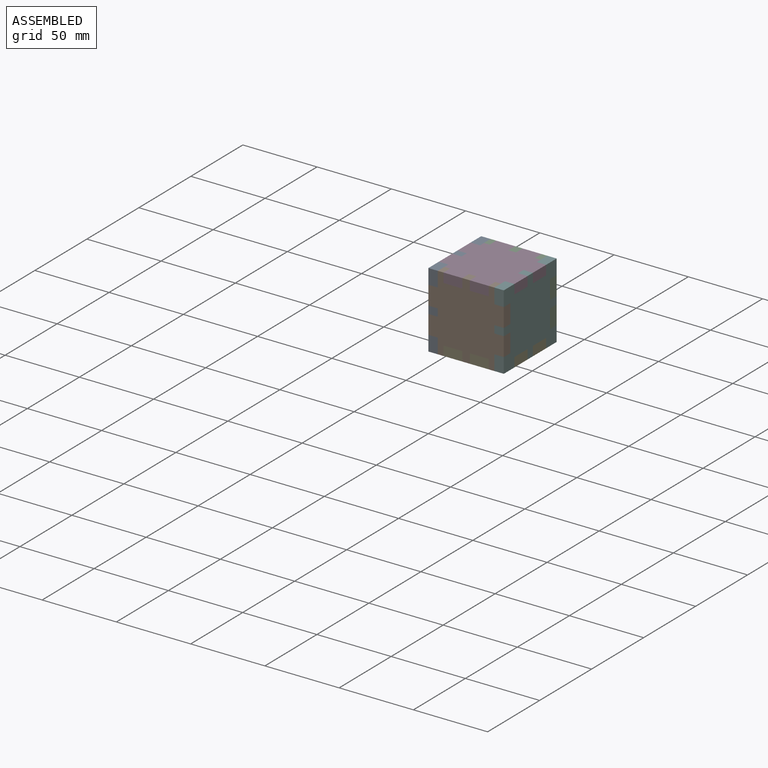
[diagram: assembled view]
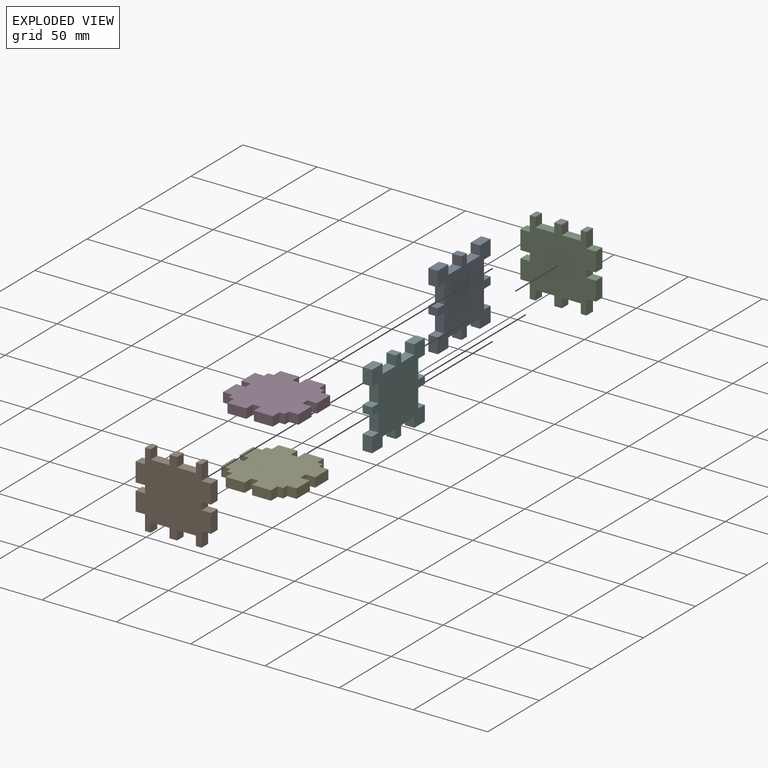
[diagram: exploded view]
GUIDED TOUR — MATED ASSEMBLY (Onshape document 6da235b9e64d2a35c3761048, AutoMate assembly 6da235b9e64d2a35c3761048_913f77d0c573499e098a4e9b_42202f5a6e1545a90d7b9f39_default)

This assembly has 6 components, labeled P0..P5 below (a component is one placed occurrence of a part; the same part can appear more than once), held together by 14 mates. A mate is a constraint between two components; its type names the relative motion it leaves free:
  PLANAR — leaves sliding in the plane through the listed point (normal = the listed direction) and rotation about that normal free.
Axis/direction vectors are unit vectors and 'through' points are millimeter coordinates, both in the assembly's world frame.

MATES
  1. PLANAR "Planar 5": P2 <-> P0, direction (0.000, 1.000, 0.000) through (15.56, 36.31, -9.84) mm
  2. PLANAR "Planar 15": P5 <-> P3, direction (0.000, 0.000, 1.000) through (37.79, 31.23, 15.56) mm
  3. PLANAR "Planar 7": P3 <-> P1, direction (0.000, -1.000, 0.000) through (6.67, -14.49, 12.38) mm
  4. PLANAR "Planar 11": P0 <-> P4, direction (-1.000, 0.000, 0.000) through (-9.84, 10.91, -9.84) mm
  5. PLANAR "Planar 14": P5 <-> P2, direction (1.000, 0.000, 0.000) through (40.96, 19.80, 9.21) mm
  6. PLANAR "Planar 1": P1 <-> P0, direction (0.000, -1.000, 0.000) through (18.10, -14.49, 9.21) mm
  7. PLANAR "Planar 12": P4 <-> P0, direction (0.000, 0.000, -1.000) through (13.02, 29.96, -35.24) mm
  8. PLANAR "Planar 8": P3 <-> P0, direction (-1.000, 0.000, 0.000) through (-9.84, 2.02, 12.38) mm
  9. PLANAR "Planar 13": P5 <-> P2, direction (0.000, 1.000, 0.000) through (37.79, 36.31, 10.48) mm
  10. PLANAR "Planar 4": P2 <-> P0, direction (-1.000, 0.000, 0.000) through (-9.84, 29.96, -18.73) mm
  11. PLANAR "Planar 3": P1 <-> P0, direction (0.000, 0.000, 1.000) through (-6.66, -11.32, 5.40) mm
  12. PLANAR "Planar 2": P1 <-> P0, direction (-1.000, 0.000, 0.000) through (-9.84, -11.32, -0.95) mm
  13. PLANAR "Planar 10": P4 <-> P1, direction (0.000, -1.000, 0.000) through (30.80, -14.49, -35.24) mm
  14. PLANAR "Planar 6": P2 <-> P0, direction (0.000, 0.000, -1.000) through (-6.66, 33.13, -25.08) mm

ASSEMBLY ORDER
  1. P0 — the base component [order heuristic]
  2. P5 — core [order heuristic]
  3. P3 — core [order heuristic]
  4. P4 [order verified]
  5. P2 — core [order heuristic]
  6. P1 — core [order heuristic]
Order-tag legend:
  [order verified] — this step's position reverses a verified removal order: the component was checked to insert without passing through the ones already placed.
  [order heuristic] — the first 5 components form the assembly's core: parts whose collision-free extraction could not be verified, listed in mate-graph order.

Of the 6 components, 6 carry the full construction recipe — the FeatureScript program that regenerates the part's solid from scratch; the rest are supplied as boundary geometry only.
Each toured component is shown spotlighted twice — in the assembled view, then in the exploded view, where a leader line traces a displaced component back to its assembled socket (saturated green if recipe-attached, orange if geometry-only; every other component desaturated gray) — followed by its recipe or geometry summary and the mates that hold it.
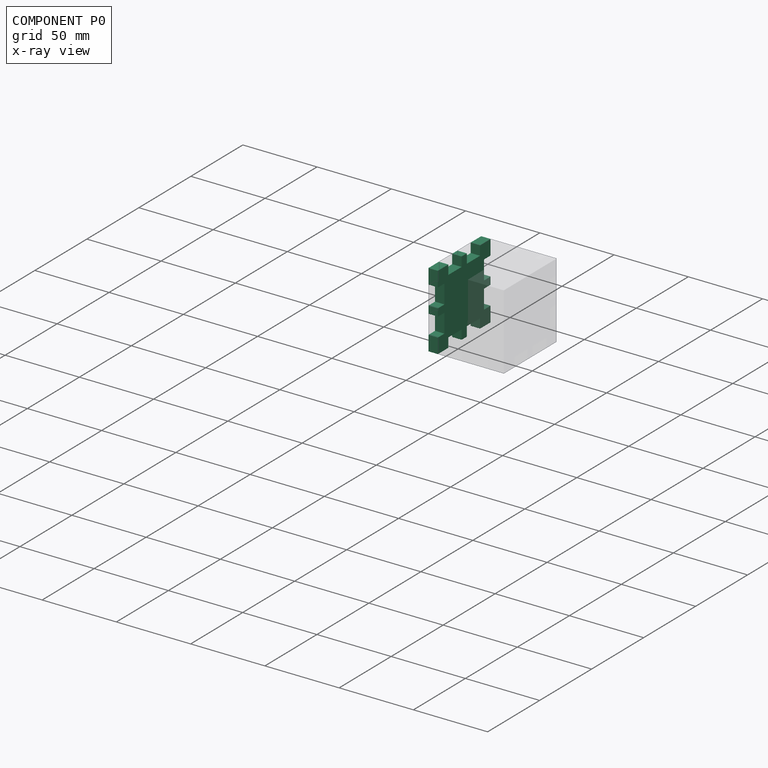
[diagram: component P0 — x-ray view]
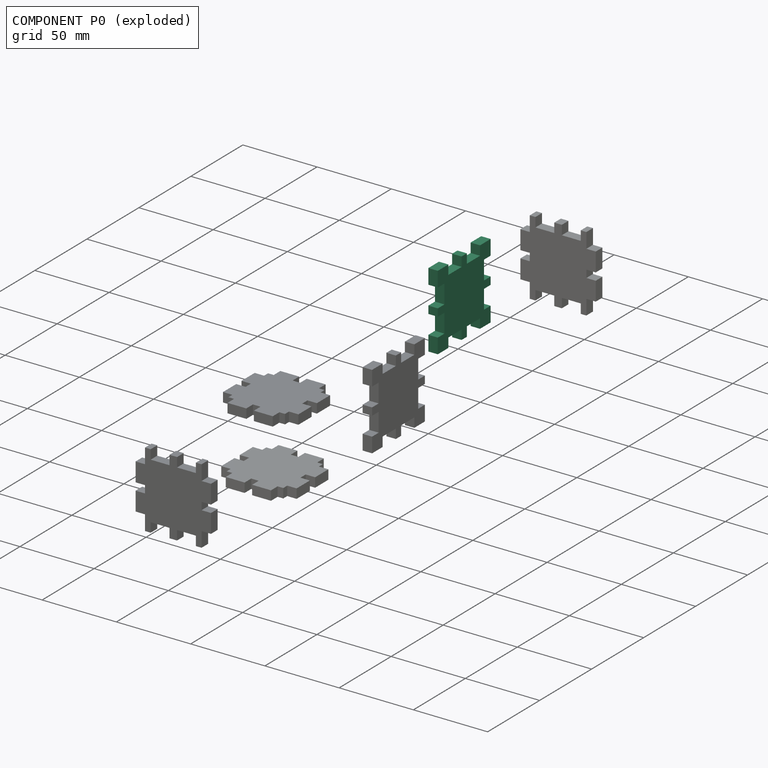
[diagram: component P0 — exploded]
COMPONENT P0 — recipe-attached (CADFS 00711558, mesh-verified: the recipe's output STEP matches this component's geometry to below the mesh-comparison resolution (tessellation chordal tolerance ~0.108 mm)).
Held by: PLANAR mate "Planar 5" to P2; PLANAR mate "Planar 11" to P4; PLANAR mate "Planar 1" to P1; PLANAR mate "Planar 12" to P4; PLANAR mate "Planar 8" to P3; PLANAR mate "Planar 4" to P2; PLANAR mate "Planar 3" to P1; PLANAR mate "Planar 2" to P1; PLANAR mate "Planar 6" to P2.
Construction recipe (FeatureScript — the CAD program that rebuilds this solid; sketch coordinates are in the units given by the * unit suffixes, e.g. mm):

FeatureScript 1511;
import(path : "onshape/std/geometry.fs", version : "1511.0");
import(path : "onshape/std/common.fs", version : "1511.0");
const mm = millimeter;
const VERTEX = EntityType.VERTEX;
const EDGE = EntityType.EDGE;
const FACE = EntityType.FACE;
const BODY = EntityType.BODY;
function v(x, y){return vector(x, y);}
function OD(order){return orderDisambiguation(order);}
function OSD(set){return originalSetDisambiguation(set);}
function TD(topology){return topologyDisambiguation(topology);}
function TDD(query){return trueDependencyDisambiguation(query);}
function sQuery(a, b, c) {return sketchEntityQuery(a, b, c);}

annotation { "Feature Type Name" : "Feature", "Feature Type Description" : "" }
export const myFeature = defineFeature(function(context is Context, id is Id, definition is map)
    precondition{}
    {
        {
            var Q0;
            Q0=qCreatedBy(makeId("Front.planeOp"),FACE);
            var sketch = newSketch(context, id + "F0", { "sketchPlane" : qUnion([Q0])});
            skLineSegment(sketch, "E0.bottom", {"start": v(25.4, 25.4) * mm, "end": v(-25.4, 25.4) * mm});
            skLineSegment(sketch, "E0.top", {"start": v(25.4, -25.4) * mm, "end": v(-25.4, -25.4) * mm});
            skLineSegment(sketch, "E0.left", {"start": v(25.4, 25.4) * mm, "end": v(25.4, -25.4) * mm});
            skLineSegment(sketch, "E0.right", {"start": v(-25.4, 25.4) * mm, "end": v(-25.4, -25.4) * mm});
            skPoint(sketch, "E0.middle", {"position": v(0, 0) * mm});
            skSolve(sketch);
        }
        {
            var Q0;
            Q0=qCreatedBy(makeId("Right.planeOp"),FACE);
            var sketch = newSketch(context, id + "F1", { "sketchPlane" : qUnion([Q0])});
            skLineSegment(sketch, "E1", {"start": v(-15.24, 19.05) * mm, "end": v(-2.54, 19.05) * mm});
            skLineSegment(sketch, "E2", {"start": v(-15.24, 25.4) * mm, "end": v(-15.24, 19.05) * mm});
            skLineSegment(sketch, "E3", {"start": v(-2.54, 25.4) * mm, "end": v(-2.54, 19.05) * mm});
            skLineSegment(sketch, "E4", {"start": v(2.54, 25.4) * mm, "end": v(2.54, 19.05) * mm});
            skLineSegment(sketch, "E5", {"start": v(15.24, 25.4) * mm, "end": v(15.24, 19.05) * mm});
            skLineSegment(sketch, "E6.trimOffspring", {"start": v(2.54, 19.05) * mm, "end": v(15.24, 19.05) * mm});
            skLineSegment(sketch, "E7", {"start": v(15.24, 25.4) * mm, "end": v(25.4, 25.4) * mm});
            skLineSegment(sketch, "E8", {"start": v(25.4, 25.4) * mm, "end": v(25.4, 15.24) * mm});
            skLineSegment(sketch, "E9", {"start": v(25.4, 15.24) * mm, "end": v(19.05, 15.24) * mm});
            skLineSegment(sketch, "E10", {"start": v(19.05, 15.24) * mm, "end": v(19.05, 2.54) * mm});
            skLineSegment(sketch, "E11", {"start": v(19.05, 2.54) * mm, "end": v(25.4, 2.54) * mm});
            skLineSegment(sketch, "E12", {"start": v(25.4, 2.54) * mm, "end": v(25.4, -2.54) * mm});
            skLineSegment(sketch, "E13", {"start": v(25.4, -2.54) * mm, "end": v(19.05, -2.54) * mm});
            skLineSegment(sketch, "E14", {"start": v(19.05, -2.54) * mm, "end": v(19.05, -15.24) * mm});
            skLineSegment(sketch, "E15", {"start": v(19.05, -15.24) * mm, "end": v(25.4, -15.24) * mm});
            skLineSegment(sketch, "E16", {"start": v(25.4, -15.24) * mm, "end": v(25.4, -25.4) * mm});
            skLineSegment(sketch, "E17", {"start": v(25.4, -25.4) * mm, "end": v(15.24, -25.4) * mm});
            skLineSegment(sketch, "E18", {"start": v(15.24, -25.4) * mm, "end": v(15.24, -19.05) * mm});
            skLineSegment(sketch, "E19", {"start": v(15.24, -19.05) * mm, "end": v(2.54, -19.05) * mm});
            skLineSegment(sketch, "E20", {"start": v(2.54, -19.05) * mm, "end": v(2.54, -25.4) * mm});
            skLineSegment(sketch, "E21", {"start": v(2.54, -25.4) * mm, "end": v(-2.54, -25.4) * mm});
            skLineSegment(sketch, "E22", {"start": v(-2.54, -25.4) * mm, "end": v(-2.54, -19.05) * mm});
            skLineSegment(sketch, "E23", {"start": v(-2.54, -19.05) * mm, "end": v(-15.24, -19.05) * mm});
            skLineSegment(sketch, "E24", {"start": v(-15.24, -19.05) * mm, "end": v(-15.24, -25.4) * mm});
            skLineSegment(sketch, "E25", {"start": v(-15.24, -25.4) * mm, "end": v(-25.4, -25.4) * mm});
            skLineSegment(sketch, "E26", {"start": v(-25.4, -25.4) * mm, "end": v(-25.4, -15.24) * mm});
            skLineSegment(sketch, "E27", {"start": v(-25.4, -15.24) * mm, "end": v(-19.05, -15.24) * mm});
            skLineSegment(sketch, "E28", {"start": v(-19.05, -15.24) * mm, "end": v(-19.05, -2.54) * mm});
            skLineSegment(sketch, "E29", {"start": v(-19.05, -2.54) * mm, "end": v(-25.4, -2.54) * mm});
            skLineSegment(sketch, "E30", {"start": v(-25.4, -2.54) * mm, "end": v(-25.4, 2.54) * mm});
            skLineSegment(sketch, "E31", {"start": v(-25.4, 2.54) * mm, "end": v(-19.05, 2.54) * mm});
            skLineSegment(sketch, "E32", {"start": v(-19.05, 2.54) * mm, "end": v(-19.05, 15.24) * mm});
            skLineSegment(sketch, "E33", {"start": v(-19.05, 15.24) * mm, "end": v(-25.4, 15.24) * mm});
            skLineSegment(sketch, "E34", {"start": v(-25.4, 15.24) * mm, "end": v(-25.4, 25.4) * mm});
            skLineSegment(sketch, "E35", {"start": v(-25.4, 25.4) * mm, "end": v(-15.24, 25.4) * mm});
            skLineSegment(sketch, "E36", {"start": v(-2.54, 25.4) * mm, "end": v(2.54, 25.4) * mm});
            skSolve(sketch);
        }
        {
            var Q0;
            Q0=makeQuery(id+"F1.imprint","IMPRINT",FACE,{"disambiguationData":[TD([[makeQuery(id+"F1.imprint","IMPRINT",EDGE,{"derivedFrom":sQuery(id+"F1.wireOp",EDGE,"E1")}),-1.0]])]});
            extrude(context, id + "F2", {"entities" : qUnion([Q0]), "depth" : 6.35 * mm, "offsetDistance" : 25.4 * mm});
        }
    });
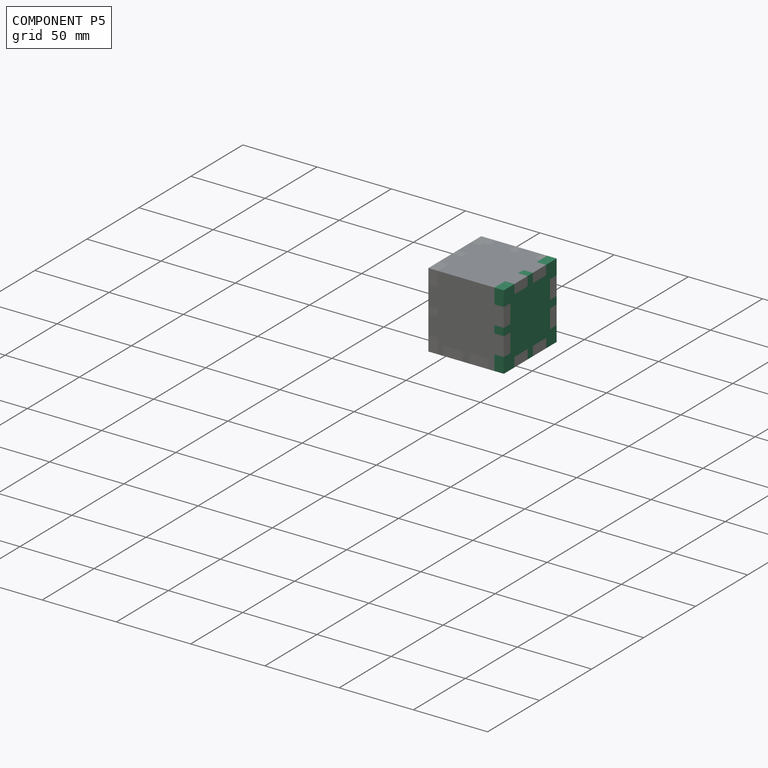
[diagram: component P5 — assembled]
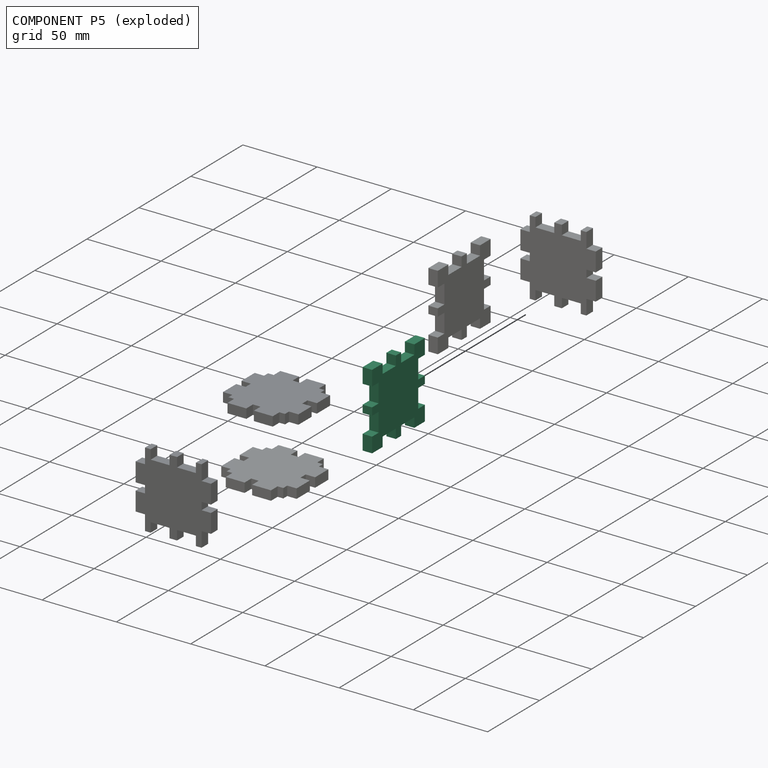
[diagram: component P5 — exploded]
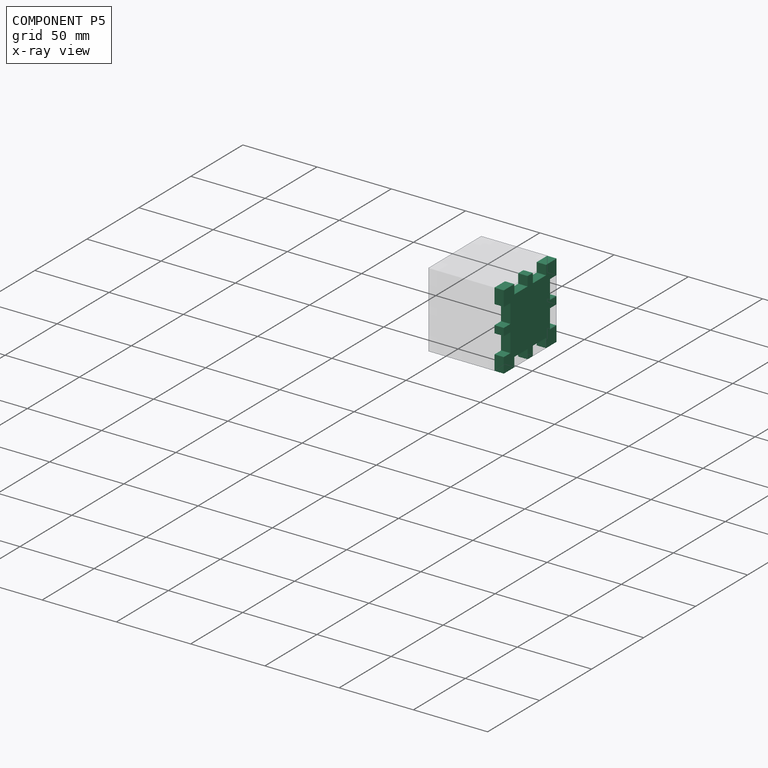
[diagram: component P5 — x-ray view]
COMPONENT P5 — same part as P0 (CADFS 00711558); its construction recipe is shown at P0.
Held by: PLANAR mate "Planar 15" to P3; PLANAR mate "Planar 14" to P2; PLANAR mate "Planar 13" to P2.
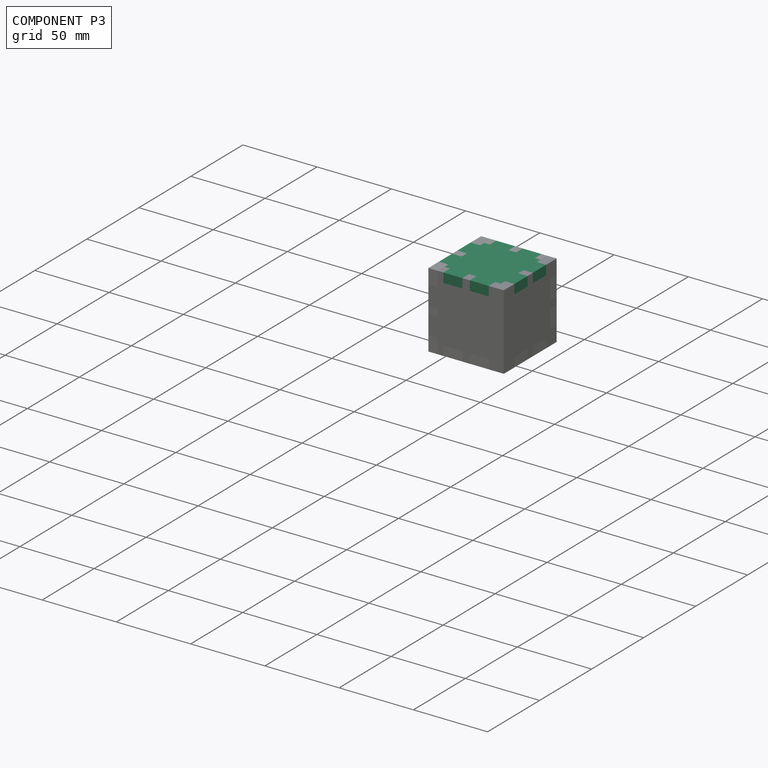
[diagram: component P3 — assembled]
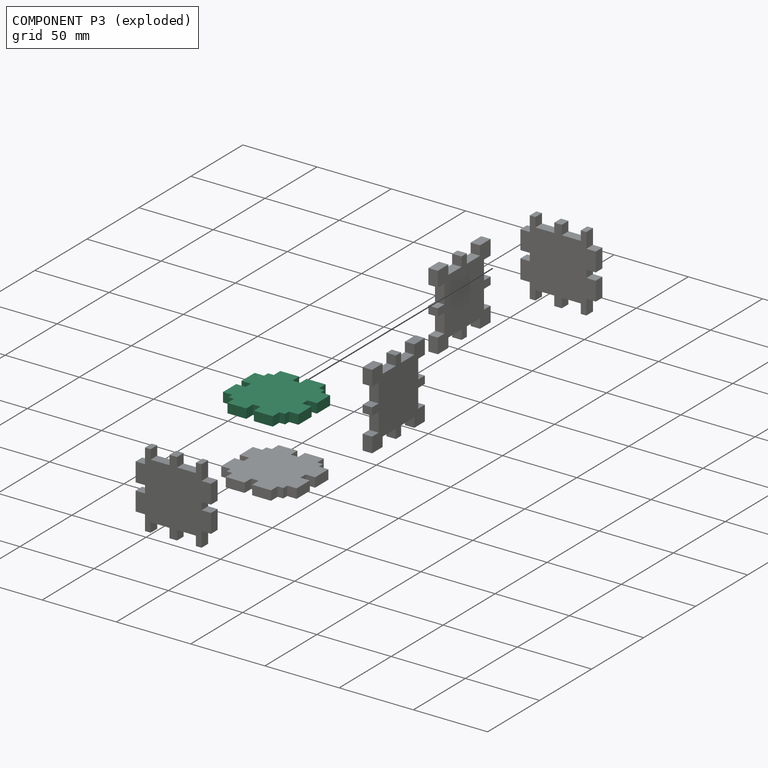
[diagram: component P3 — exploded]
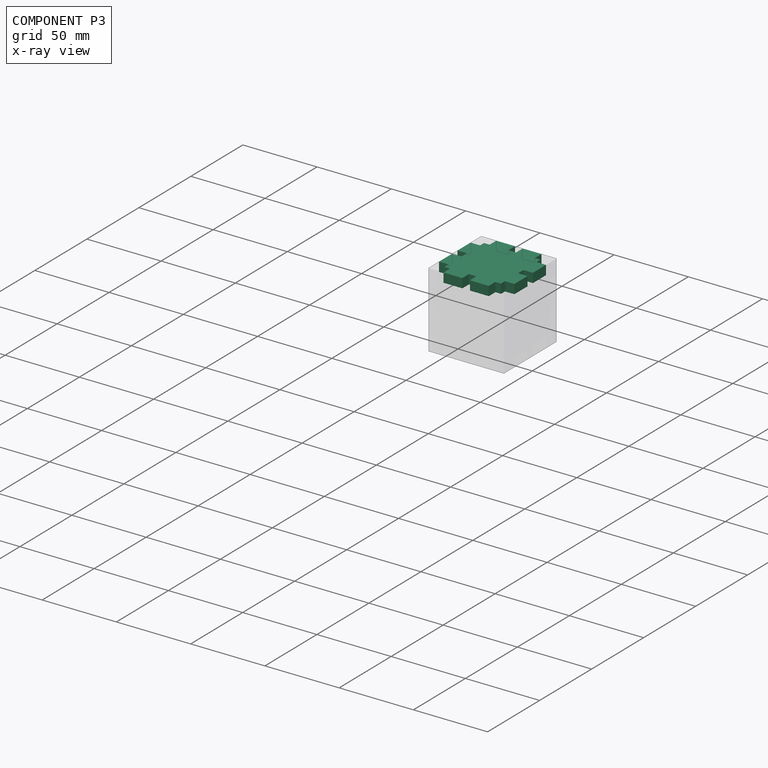
[diagram: component P3 — x-ray view]
COMPONENT P3 — recipe-attached (CADFS 00711560, mesh-verified: the recipe's output STEP matches this component's geometry to below the mesh-comparison resolution (tessellation chordal tolerance ~0.108 mm)).
Held by: PLANAR mate "Planar 15" to P5; PLANAR mate "Planar 7" to P1; PLANAR mate "Planar 8" to P0.
Construction recipe (FeatureScript — the CAD program that rebuilds this solid; sketch coordinates are in the units given by the * unit suffixes, e.g. mm):

FeatureScript 1511;
import(path : "onshape/std/geometry.fs", version : "1511.0");
import(path : "onshape/std/common.fs", version : "1511.0");
const mm = millimeter;
const VERTEX = EntityType.VERTEX;
const EDGE = EntityType.EDGE;
const FACE = EntityType.FACE;
const BODY = EntityType.BODY;
function v(x, y){return vector(x, y);}
function OD(order){return orderDisambiguation(order);}
function OSD(set){return originalSetDisambiguation(set);}
function TD(topology){return topologyDisambiguation(topology);}
function TDD(query){return trueDependencyDisambiguation(query);}
function sQuery(a, b, c) {return sketchEntityQuery(a, b, c);}

annotation { "Feature Type Name" : "Feature", "Feature Type Description" : "" }
export const myFeature = defineFeature(function(context is Context, id is Id, definition is map)
    precondition{}
    {
        {
            var Q0;
            Q0=qCreatedBy(makeId("Front.planeOp"),FACE);
            var sketch = newSketch(context, id + "F0", { "sketchPlane" : qUnion([Q0])});
            skLineSegment(sketch, "E0.bottom", {"start": v(25.4, 25.4) * mm, "end": v(-25.4, 25.4) * mm, "construction": true});
            skLineSegment(sketch, "E0.top", {"start": v(25.4, -25.4) * mm, "end": v(-25.4, -25.4) * mm, "construction": true});
            skLineSegment(sketch, "E0.left", {"start": v(25.4, 25.4) * mm, "end": v(25.4, -25.4) * mm, "construction": true});
            skLineSegment(sketch, "E0.right", {"start": v(-25.4, 25.4) * mm, "end": v(-25.4, -25.4) * mm, "construction": true});
            skPoint(sketch, "E0.middle", {"position": v(0, 0) * mm});
            skLineSegment(sketch, "E1", {"start": v(-19.05, 25.4) * mm, "end": v(-19.05, -25.4) * mm, "construction": true});
            skLineSegment(sketch, "E2", {"start": v(-2.54, -25.4) * mm, "end": v(-2.54, 25.4) * mm, "construction": true});
            skLineSegment(sketch, "E3", {"start": v(2.54, 25.4) * mm, "end": v(2.54, -25.4) * mm, "construction": true});
            skLineSegment(sketch, "E4", {"start": v(15.24, 25.4) * mm, "end": v(15.24, -25.4) * mm, "construction": true});
            skLineSegment(sketch, "E5", {"start": v(-15.24, 25.4) * mm, "end": v(-15.24, -25.4) * mm, "construction": true});
            skLineSegment(sketch, "E6", {"start": v(19.05, 25.4) * mm, "end": v(19.05, -25.4) * mm, "construction": true});
            skLineSegment(sketch, "E7", {"start": v(-25.4, 19.05) * mm, "end": v(25.4, 19.05) * mm, "construction": true});
            skLineSegment(sketch, "E8", {"start": v(-25.4, 15.24) * mm, "end": v(25.4, 15.24) * mm, "construction": true});
            skLineSegment(sketch, "E9", {"start": v(-25.4, 2.54) * mm, "end": v(25.4, 2.54) * mm, "construction": true});
            skLineSegment(sketch, "E10", {"start": v(-25.4, -19.05) * mm, "end": v(25.4, -19.05) * mm, "construction": true});
            skLineSegment(sketch, "E11", {"start": v(-25.4, -15.24) * mm, "end": v(25.4, -15.24) * mm, "construction": true});
            skLineSegment(sketch, "E12", {"start": v(-25.4, -2.54) * mm, "end": v(25.4, -2.54) * mm, "construction": true});
            skLineSegment(sketch, "E13", {"start": v(-25.4, 15.24) * mm, "end": v(-25.4, 2.54) * mm});
            skLineSegment(sketch, "E14", {"start": v(-25.4, 2.54) * mm, "end": v(-19.05, 2.54) * mm});
            skLineSegment(sketch, "E15", {"start": v(-19.05, 2.54) * mm, "end": v(-19.05, -2.54) * mm});
            skLineSegment(sketch, "E16", {"start": v(-19.05, -2.54) * mm, "end": v(-25.4, -2.54) * mm});
            skLineSegment(sketch, "E17", {"start": v(-25.4, -2.54) * mm, "end": v(-25.4, -15.24) * mm});
            skLineSegment(sketch, "E18", {"start": v(-25.4, -15.24) * mm, "end": v(-19.05, -15.24) * mm});
            skLineSegment(sketch, "E19", {"start": v(-19.05, -15.24) * mm, "end": v(-19.05, -19.05) * mm});
            skLineSegment(sketch, "E20", {"start": v(-19.05, -19.05) * mm, "end": v(-15.24, -19.05) * mm});
            skLineSegment(sketch, "E21", {"start": v(-15.24, -19.05) * mm, "end": v(-15.24, -25.4) * mm});
            skLineSegment(sketch, "E22", {"start": v(-15.24, -25.4) * mm, "end": v(-2.54, -25.4) * mm});
            skLineSegment(sketch, "E23", {"start": v(-2.54, -25.4) * mm, "end": v(-2.54, -19.05) * mm});
            skLineSegment(sketch, "E24", {"start": v(-2.54, -19.05) * mm, "end": v(2.54, -19.05) * mm});
            skLineSegment(sketch, "E25", {"start": v(2.54, -19.05) * mm, "end": v(2.54, -25.4) * mm});
            skLineSegment(sketch, "E26", {"start": v(2.54, -25.4) * mm, "end": v(15.24, -25.4) * mm});
            skLineSegment(sketch, "E27", {"start": v(15.24, -25.4) * mm, "end": v(15.24, -19.05) * mm});
            skLineSegment(sketch, "E28", {"start": v(15.24, -19.05) * mm, "end": v(19.05, -19.05) * mm});
            skLineSegment(sketch, "E29", {"start": v(19.05, -19.05) * mm, "end": v(19.05, -15.24) * mm});
            skLineSegment(sketch, "E30", {"start": v(19.05, -15.24) * mm, "end": v(25.4, -15.24) * mm});
            skLineSegment(sketch, "E31", {"start": v(25.4, -15.24) * mm, "end": v(25.4, -2.54) * mm});
            skLineSegment(sketch, "E32", {"start": v(25.4, -2.54) * mm, "end": v(19.05, -2.54) * mm});
            skLineSegment(sketch, "E33", {"start": v(19.05, -2.54) * mm, "end": v(19.05, 2.54) * mm});
            skLineSegment(sketch, "E34", {"start": v(19.05, 2.54) * mm, "end": v(25.4, 2.54) * mm});
            skLineSegment(sketch, "E35", {"start": v(25.4, 2.54) * mm, "end": v(25.4, 15.24) * mm});
            skLineSegment(sketch, "E36", {"start": v(25.4, 15.24) * mm, "end": v(19.05, 15.24) * mm});
            skLineSegment(sketch, "E37", {"start": v(19.05, 15.24) * mm, "end": v(19.05, 19.05) * mm});
            skLineSegment(sketch, "E38", {"start": v(19.05, 19.05) * mm, "end": v(15.24, 19.05) * mm});
            skLineSegment(sketch, "E39", {"start": v(15.24, 19.05) * mm, "end": v(15.24, 25.4) * mm});
            skLineSegment(sketch, "E40", {"start": v(15.24, 25.4) * mm, "end": v(2.54, 25.4) * mm});
            skLineSegment(sketch, "E41", {"start": v(2.54, 25.4) * mm, "end": v(2.54, 19.05) * mm});
            skLineSegment(sketch, "E42", {"start": v(2.54, 19.05) * mm, "end": v(-2.54, 19.05) * mm});
            skLineSegment(sketch, "E43", {"start": v(-2.54, 19.05) * mm, "end": v(-2.54, 25.4) * mm});
            skLineSegment(sketch, "E44", {"start": v(-2.54, 25.4) * mm, "end": v(-15.24, 25.4) * mm});
            skLineSegment(sketch, "E45", {"start": v(-15.24, 25.4) * mm, "end": v(-15.24, 19.05) * mm});
            skLineSegment(sketch, "E46", {"start": v(-15.24, 19.05) * mm, "end": v(-19.05, 19.05) * mm});
            skLineSegment(sketch, "E47", {"start": v(-19.05, 19.05) * mm, "end": v(-19.05, 15.24) * mm});
            skLineSegment(sketch, "E48", {"start": v(-19.05, 15.24) * mm, "end": v(-25.4, 15.24) * mm});
            skSolve(sketch);
        }
        {
            var Q0;
            Q0=makeQuery(id+"F0.imprint","IMPRINT",FACE,{"disambiguationData":[TD([[makeQuery(id+"F0.imprint","IMPRINT",EDGE,{"derivedFrom":sQuery(id+"F0.wireOp",EDGE,"E13")}),1.0]])]});
            extrude(context, id + "F1", {"entities" : qUnion([Q0]), "depth" : 6.35 * mm, "offsetDistance" : 25.4 * mm});
        }
    });
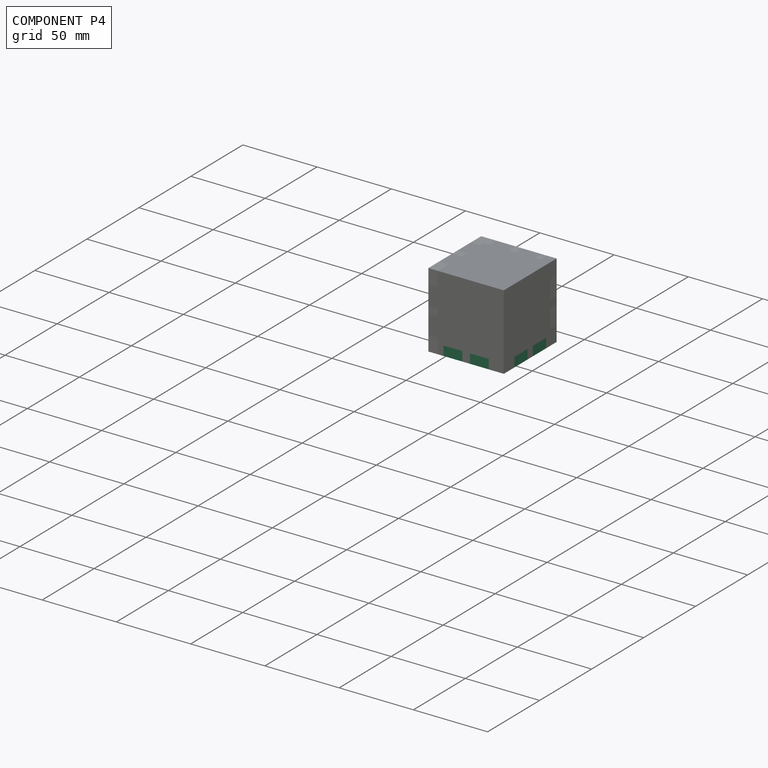
[diagram: component P4 — assembled]
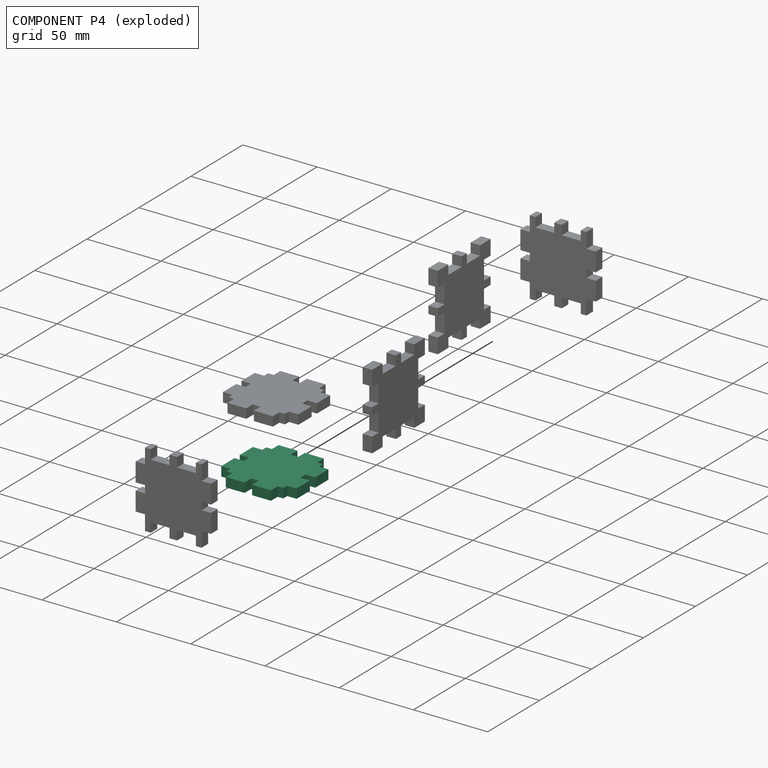
[diagram: component P4 — exploded]
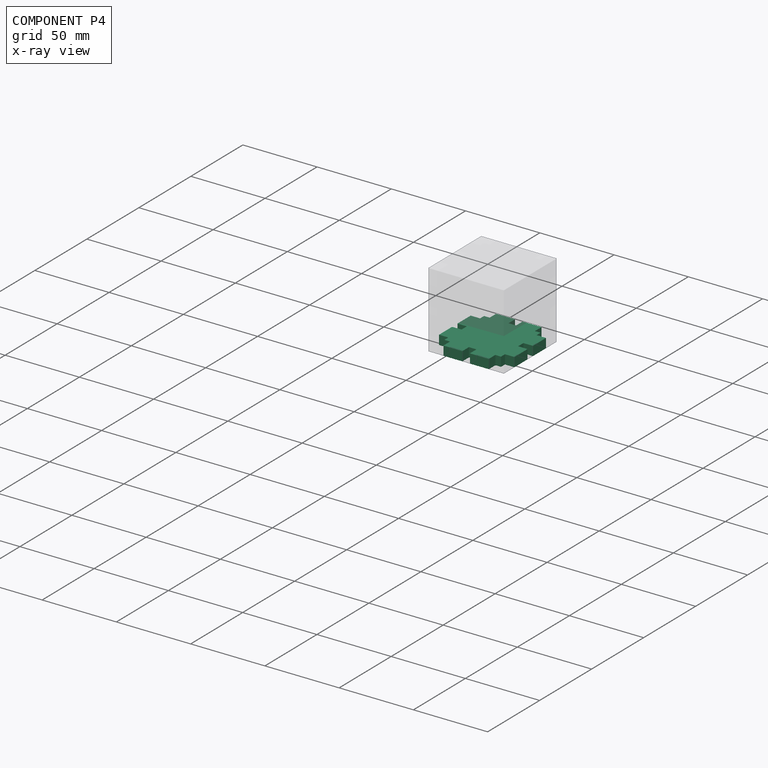
[diagram: component P4 — x-ray view]
COMPONENT P4 — same part as P3 (CADFS 00711560); its construction recipe is shown at P3.
Held by: PLANAR mate "Planar 11" to P0; PLANAR mate "Planar 12" to P0; PLANAR mate "Planar 10" to P1.
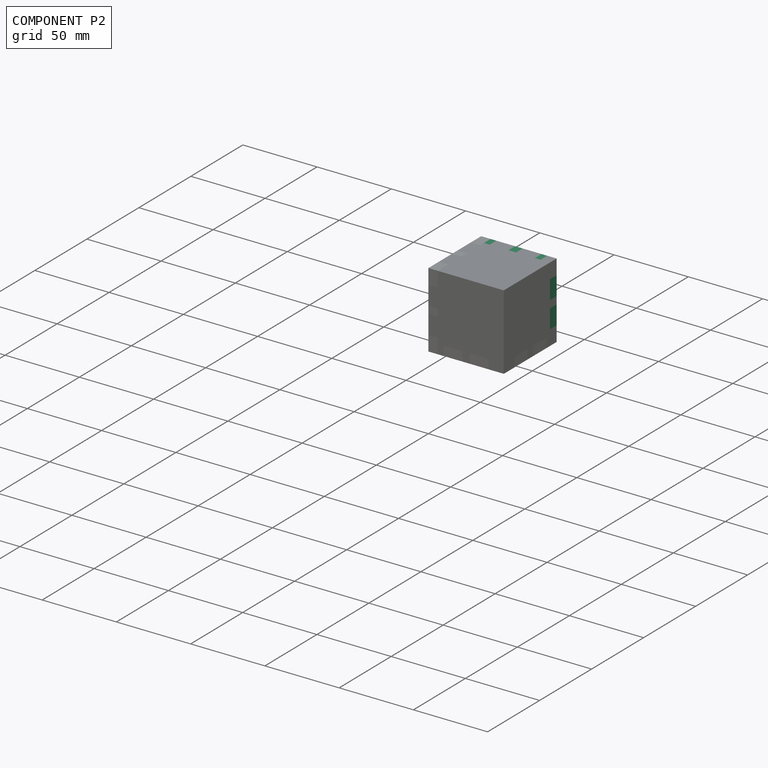
[diagram: component P2 — assembled]
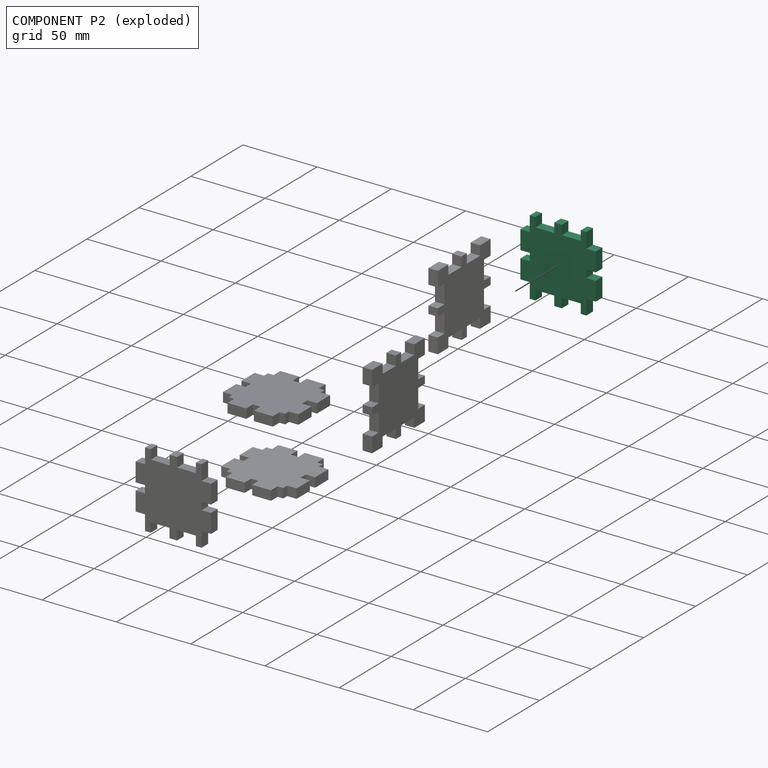
[diagram: component P2 — exploded]
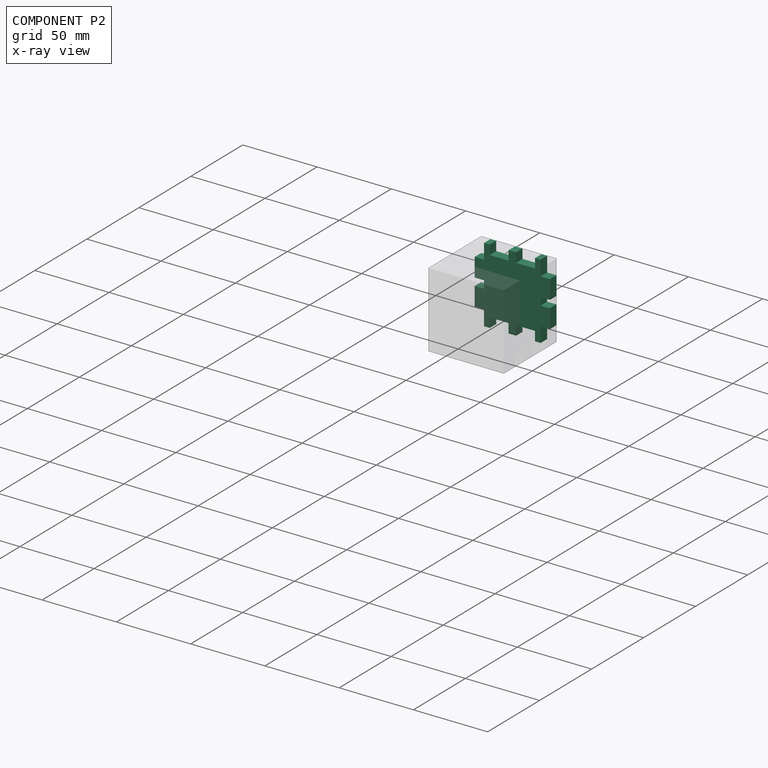
[diagram: component P2 — x-ray view]
COMPONENT P2 — same part as P1 (CADFS 00711558); its construction recipe is shown at P1.
Held by: PLANAR mate "Planar 5" to P0; PLANAR mate "Planar 14" to P5; PLANAR mate "Planar 13" to P5; PLANAR mate "Planar 4" to P0; PLANAR mate "Planar 6" to P0.
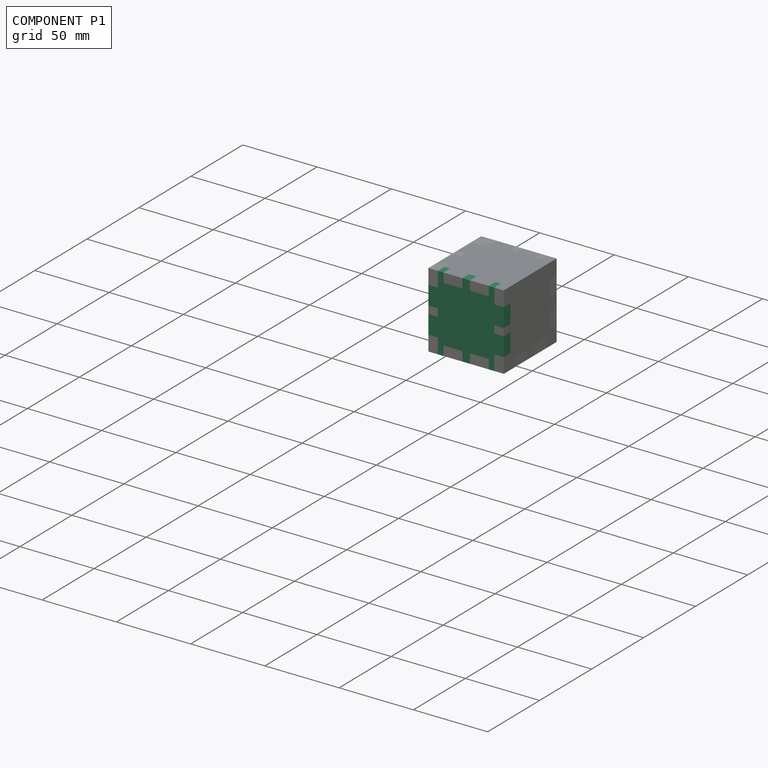
[diagram: component P1 — assembled]
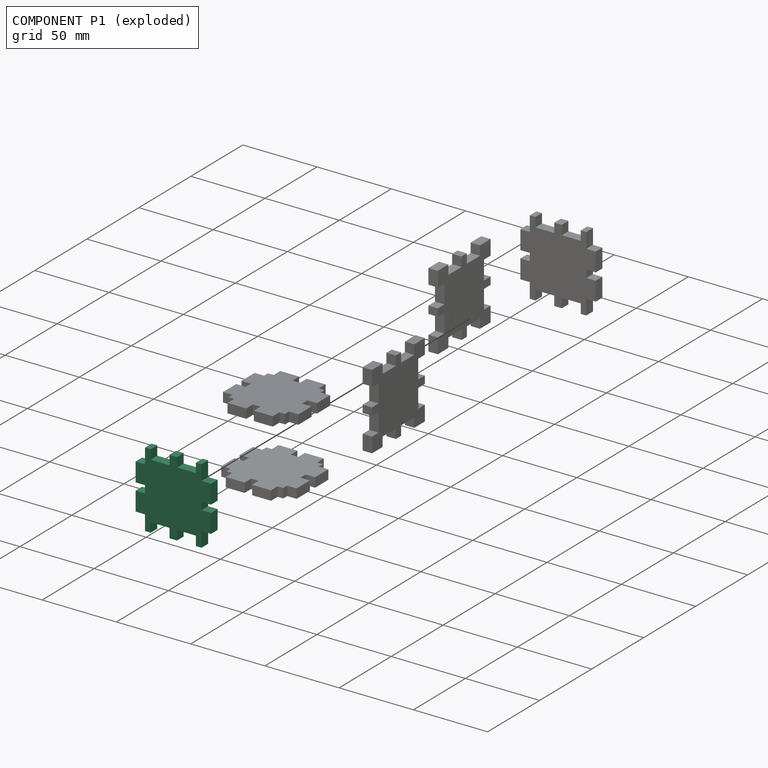
[diagram: component P1 — exploded]
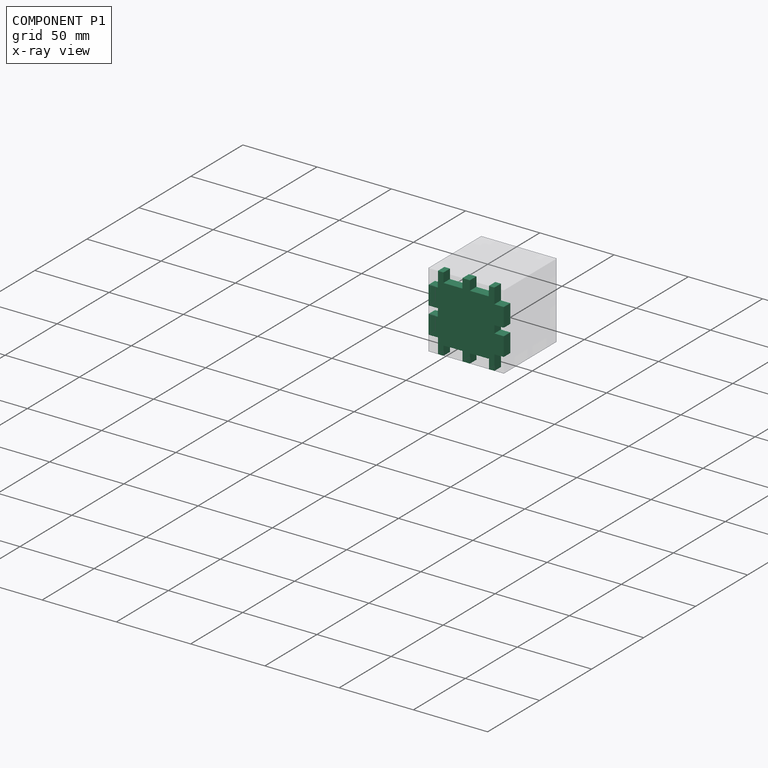
[diagram: component P1 — x-ray view]
COMPONENT P1 — recipe-attached (CADFS 00711558, mesh-verified: the recipe's output STEP matches this component's geometry to below the mesh-comparison resolution (tessellation chordal tolerance ~0.108 mm)).
Held by: PLANAR mate "Planar 7" to P3; PLANAR mate "Planar 1" to P0; PLANAR mate "Planar 3" to P0; PLANAR mate "Planar 2" to P0; PLANAR mate "Planar 10" to P4.
Construction recipe (FeatureScript — the CAD program that rebuilds this solid; sketch coordinates are in the units given by the * unit suffixes, e.g. mm):

FeatureScript 1511;
import(path : "onshape/std/geometry.fs", version : "1511.0");
import(path : "onshape/std/common.fs", version : "1511.0");
const mm = millimeter;
const VERTEX = EntityType.VERTEX;
const EDGE = EntityType.EDGE;
const FACE = EntityType.FACE;
const BODY = EntityType.BODY;
function v(x, y){return vector(x, y);}
function OD(order){return orderDisambiguation(order);}
function OSD(set){return originalSetDisambiguation(set);}
function TD(topology){return topologyDisambiguation(topology);}
function TDD(query){return trueDependencyDisambiguation(query);}
function sQuery(a, b, c) {return sketchEntityQuery(a, b, c);}

annotation { "Feature Type Name" : "Feature", "Feature Type Description" : "" }
export const myFeature = defineFeature(function(context is Context, id is Id, definition is map)
    precondition{}
    {
        {
            var Q0;
            Q0=qCreatedBy(makeId("Front.planeOp"),FACE);
            var sketch = newSketch(context, id + "F0", { "sketchPlane" : qUnion([Q0])});
            skLineSegment(sketch, "E0.bottom", {"start": v(25.4, 25.4) * mm, "end": v(-25.4, 25.4) * mm});
            skLineSegment(sketch, "E0.top", {"start": v(25.4, -25.4) * mm, "end": v(-25.4, -25.4) * mm});
            skLineSegment(sketch, "E0.left", {"start": v(25.4, 25.4) * mm, "end": v(25.4, -25.4) * mm});
            skLineSegment(sketch, "E0.right", {"start": v(-25.4, 25.4) * mm, "end": v(-25.4, -25.4) * mm});
            skPoint(sketch, "E0.middle", {"position": v(0, 0) * mm});
            skSolve(sketch);
        }
        {
            var Q0;
            Q0=qCreatedBy(makeId("Right.planeOp"),FACE);
            var sketch = newSketch(context, id + "F1", { "sketchPlane" : qUnion([Q0])});
            skLineSegment(sketch, "E1", {"start": v(-15.24, 19.05) * mm, "end": v(-2.54, 19.05) * mm});
            skLineSegment(sketch, "E2", {"start": v(-15.24, 25.4) * mm, "end": v(-15.24, 19.05) * mm});
            skLineSegment(sketch, "E3", {"start": v(-2.54, 25.4) * mm, "end": v(-2.54, 19.05) * mm});
            skLineSegment(sketch, "E4", {"start": v(2.54, 25.4) * mm, "end": v(2.54, 19.05) * mm});
            skLineSegment(sketch, "E5", {"start": v(15.24, 25.4) * mm, "end": v(15.24, 19.05) * mm});
            skLineSegment(sketch, "E6.trimOffspring", {"start": v(2.54, 19.05) * mm, "end": v(15.24, 19.05) * mm});
            skLineSegment(sketch, "E7", {"start": v(15.24, 25.4) * mm, "end": v(25.4, 25.4) * mm});
            skLineSegment(sketch, "E8", {"start": v(25.4, 25.4) * mm, "end": v(25.4, 15.24) * mm});
            skLineSegment(sketch, "E9", {"start": v(25.4, 15.24) * mm, "end": v(19.05, 15.24) * mm});
            skLineSegment(sketch, "E10", {"start": v(19.05, 15.24) * mm, "end": v(19.05, 2.54) * mm});
            skLineSegment(sketch, "E11", {"start": v(19.05, 2.54) * mm, "end": v(25.4, 2.54) * mm});
            skLineSegment(sketch, "E12", {"start": v(25.4, 2.54) * mm, "end": v(25.4, -2.54) * mm});
            skLineSegment(sketch, "E13", {"start": v(25.4, -2.54) * mm, "end": v(19.05, -2.54) * mm});
            skLineSegment(sketch, "E14", {"start": v(19.05, -2.54) * mm, "end": v(19.05, -15.24) * mm});
            skLineSegment(sketch, "E15", {"start": v(19.05, -15.24) * mm, "end": v(25.4, -15.24) * mm});
            skLineSegment(sketch, "E16", {"start": v(25.4, -15.24) * mm, "end": v(25.4, -25.4) * mm});
            skLineSegment(sketch, "E17", {"start": v(25.4, -25.4) * mm, "end": v(15.24, -25.4) * mm});
            skLineSegment(sketch, "E18", {"start": v(15.24, -25.4) * mm, "end": v(15.24, -19.05) * mm});
            skLineSegment(sketch, "E19", {"start": v(15.24, -19.05) * mm, "end": v(2.54, -19.05) * mm});
            skLineSegment(sketch, "E20", {"start": v(2.54, -19.05) * mm, "end": v(2.54, -25.4) * mm});
            skLineSegment(sketch, "E21", {"start": v(2.54, -25.4) * mm, "end": v(-2.54, -25.4) * mm});
            skLineSegment(sketch, "E22", {"start": v(-2.54, -25.4) * mm, "end": v(-2.54, -19.05) * mm});
            skLineSegment(sketch, "E23", {"start": v(-2.54, -19.05) * mm, "end": v(-15.24, -19.05) * mm});
            skLineSegment(sketch, "E24", {"start": v(-15.24, -19.05) * mm, "end": v(-15.24, -25.4) * mm});
            skLineSegment(sketch, "E25", {"start": v(-15.24, -25.4) * mm, "end": v(-25.4, -25.4) * mm});
            skLineSegment(sketch, "E26", {"start": v(-25.4, -25.4) * mm, "end": v(-25.4, -15.24) * mm});
            skLineSegment(sketch, "E27", {"start": v(-25.4, -15.24) * mm, "end": v(-19.05, -15.24) * mm});
            skLineSegment(sketch, "E28", {"start": v(-19.05, -15.24) * mm, "end": v(-19.05, -2.54) * mm});
            skLineSegment(sketch, "E29", {"start": v(-19.05, -2.54) * mm, "end": v(-25.4, -2.54) * mm});
            skLineSegment(sketch, "E30", {"start": v(-25.4, -2.54) * mm, "end": v(-25.4, 2.54) * mm});
            skLineSegment(sketch, "E31", {"start": v(-25.4, 2.54) * mm, "end": v(-19.05, 2.54) * mm});
            skLineSegment(sketch, "E32", {"start": v(-19.05, 2.54) * mm, "end": v(-19.05, 15.24) * mm});
            skLineSegment(sketch, "E33", {"start": v(-19.05, 15.24) * mm, "end": v(-25.4, 15.24) * mm});
            skLineSegment(sketch, "E34", {"start": v(-25.4, 15.24) * mm, "end": v(-25.4, 25.4) * mm});
            skLineSegment(sketch, "E35", {"start": v(-25.4, 25.4) * mm, "end": v(-15.24, 25.4) * mm});
            skLineSegment(sketch, "E36", {"start": v(-2.54, 25.4) * mm, "end": v(2.54, 25.4) * mm});
            skSolve(sketch);
        }
        {
            var Q0;
            Q0=makeQuery(id+"F1.imprint","IMPRINT",FACE,{"disambiguationData":[TD([[makeQuery(id+"F1.imprint","IMPRINT",EDGE,{"derivedFrom":sQuery(id+"F1.wireOp",EDGE,"E1")}),-1.0]])]});
            extrude(context, id + "F2", {"entities" : qUnion([Q0]), "depth" : 6.35 * mm, "offsetDistance" : 25.4 * mm});
        }
    });
PROVENANCE & LICENSES
Assembly (occurrences, transforms, mates, per-part STEP geometry): AutoMate dataset, Zenodo record 7776208, CC0.
Construction recipes: CADFS (HuggingFace VladPyatov/CADFS, CC-BY-4.0, layered over the ABC dataset), FeatureScript reconstruction programs keyed by ABC model id.
Join: ABC meta listings map ABC model id -> Onshape documentId; within a shared document, parts are matched by geometric signature (bounding-box dims + volume at 0.1% relative tolerance, exact B-rep face/solid counts).
Verification: 6 of this assembly's 6 components carry a recipe attachment, and every attachment is mesh-verified: the CADFS STEP and the AutoMate member STEP were compared as meshes in their shared local frame (symmetric sampled-point-to-mesh distance); worst across the 6 attachments: below the mesh-comparison resolution (tessellation chordal tolerance ~0.108 mm) on a 72 mm part.
Renders: orthographic iso camera (az 35 / el 25); the floor grid conveys scale (grid pitch printed in each image; no ruler). In the exploded view each component is displaced by its stored offset vector: the offsets alone carry the explosion direction (mate normal/axis signs are not orientation cues and do not encode it), and separation distances are assigned per mate-chain, not proportionally to assembly-order depth.
